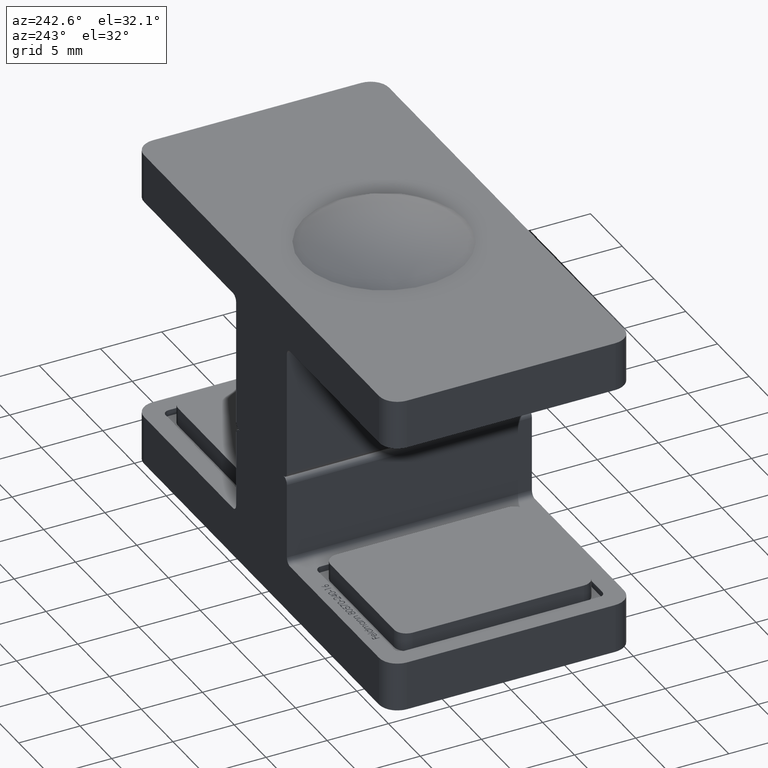
[diagram: clean part render]
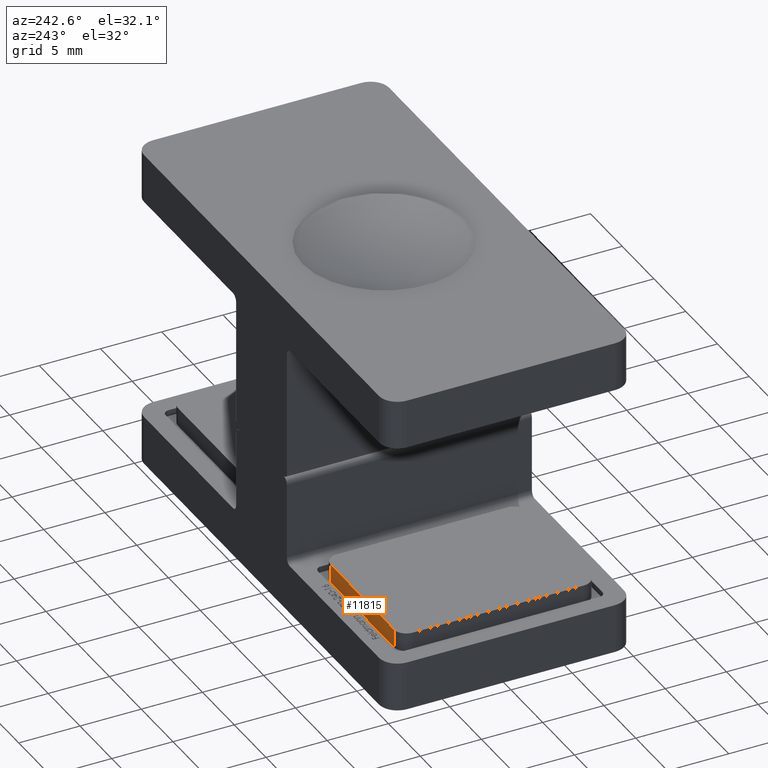
[diagram: same view with one face highlighted and labeled with its STEP entity id]
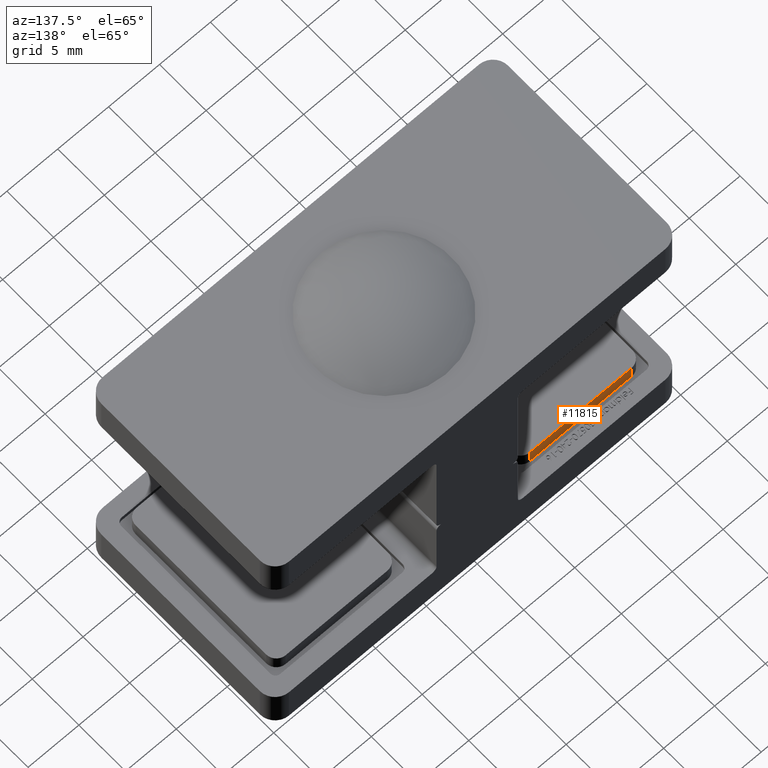
[diagram: same view with one face highlighted and labeled with its STEP entity id]
A machine part, auxiliary view. The second image highlights one B-rep face of the part: STEP entity #11815.
A second angle (auxiliary view) of the same face is appended — the face is thin or edge-on in the first view.
In plain terms, the highlighted planar face has unit normal (0, 1, 0).
Its self-contained STEP definition (entity closure, byte-faithful):
#559 = ORIENTED_EDGE ( 'NONE', *, *, #26564, .T. ) ;
#2825 = AXIS2_PLACEMENT_3D ( 'NONE', #7590, #34743, #7356 ) ;
#3975 = ORIENTED_EDGE ( 'NONE', *, *, #8671, .F. ) ;
#6097 = DIRECTION ( 'NONE',  ( -0.000000000000000000, -0.000000000000000000, 1.000000000000000000 ) ) ;
#6244 = LINE ( 'NONE', #17863, #23625 ) ;
#7356 = DIRECTION ( 'NONE',  ( 0.000000000000000000, -0.000000000000000000, 1.000000000000000000 ) ) ;
#7377 = ORIENTED_EDGE ( 'NONE', *, *, #34305, .T. ) ;
#7590 = CARTESIAN_POINT ( 'NONE',  ( -6.000000000000002665, 8.000000000000000000, 1.500000000000000000 ) ) ;
#8671 = EDGE_CURVE ( 'NONE', #27595, #12476, #6244, .T. ) ;
#11617 = CARTESIAN_POINT ( 'NONE',  ( 4.999999999999996447, 8.000000000000000000, 1.500000000000000000 ) ) ;
#11716 = VECTOR ( 'NONE', #6097, 1000.000000000000000 ) ;
#11815 = ADVANCED_FACE ( 'NONE', ( #34579 ), #18572, .T. ) ;
#12291 = DIRECTION ( 'NONE',  ( -0.000000000000000000, 0.000000000000000000, -1.000000000000000000 ) ) ;
#12346 = LINE ( 'NONE', #13106, #14475 ) ;
#12476 = VERTEX_POINT ( 'NONE', #24809 ) ;
#13106 = CARTESIAN_POINT ( 'NONE',  ( -6.000000000000002665, 8.000000000000000000, 1.500000000000000000 ) ) ;
#14280 = CARTESIAN_POINT ( 'NONE',  ( -5.000000000000002665, 8.000000000000000000, 1.500000000000000000 ) ) ;
#14475 = VECTOR ( 'NONE', #21132, 1000.000000000000000 ) ;
#17104 = EDGE_LOOP ( 'NONE', ( #3975, #33895, #7377, #559 ) ) ;
#17863 = CARTESIAN_POINT ( 'NONE',  ( -6.000000000000002665, 8.000000000000000000, 0.000000000000000000 ) ) ;
#18572 = PLANE ( 'NONE',  #2825 ) ;
#19786 = LINE ( 'NONE', #14280, #11716 ) ;
#20582 = VERTEX_POINT ( 'NONE', #24504 ) ;
#21132 = DIRECTION ( 'NONE',  ( 1.000000000000000000, 0.000000000000000000, 0.000000000000000000 ) ) ;
#21134 = LINE ( 'NONE', #30953, #22847 ) ;
#22847 = VECTOR ( 'NONE', #12291, 1000.000000000000000 ) ;
#23111 = CARTESIAN_POINT ( 'NONE',  ( -5.000000000000002665, 8.000000000000000000, 0.000000000000000000 ) ) ;
#23625 = VECTOR ( 'NONE', #34401, 1000.000000000000000 ) ;
#24504 = CARTESIAN_POINT ( 'NONE',  ( -5.000000000000002665, 8.000000000000000000, 1.500000000000000000 ) ) ;
#24809 = CARTESIAN_POINT ( 'NONE',  ( 4.999999999999996447, 8.000000000000000000, 0.000000000000000000 ) ) ;
#26564 = EDGE_CURVE ( 'NONE', #27569, #12476, #21134, .T. ) ;
#27569 = VERTEX_POINT ( 'NONE', #11617 ) ;
#27595 = VERTEX_POINT ( 'NONE', #23111 ) ;
#28918 = EDGE_CURVE ( 'NONE', #27595, #20582, #19786, .T. ) ;
#30953 = CARTESIAN_POINT ( 'NONE',  ( 4.999999999999996447, 8.000000000000000000, 1.500000000000000000 ) ) ;
#33895 = ORIENTED_EDGE ( 'NONE', *, *, #28918, .T. ) ;
#34305 = EDGE_CURVE ( 'NONE', #20582, #27569, #12346, .T. ) ;
#34401 = DIRECTION ( 'NONE',  ( 1.000000000000000000, 0.000000000000000000, 0.000000000000000000 ) ) ;
#34579 = FACE_OUTER_BOUND ( 'NONE', #17104, .T. ) ;
#34743 = DIRECTION ( 'NONE',  ( 0.000000000000000000, 1.000000000000000000, 0.000000000000000000 ) ) ;